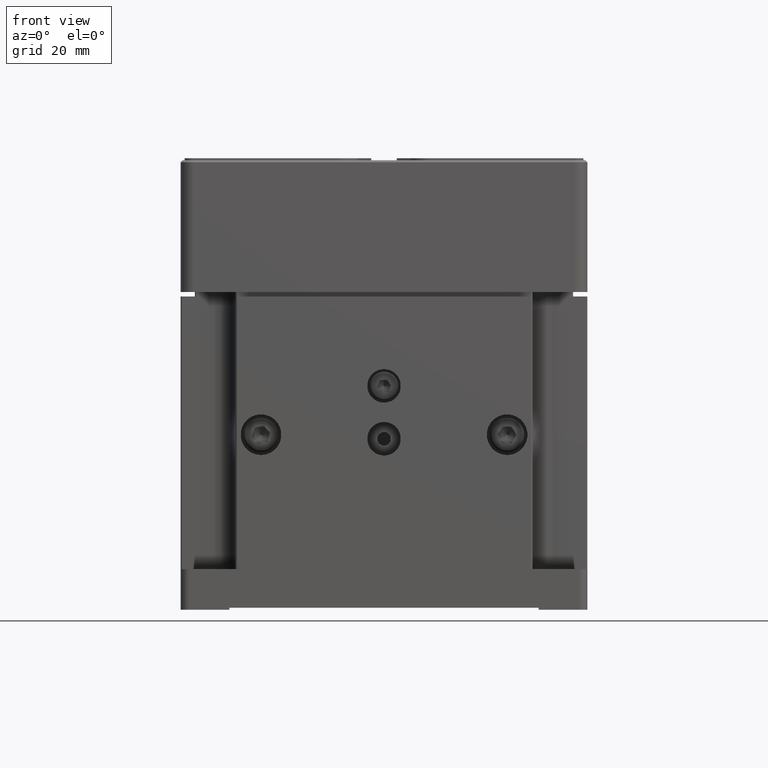
[diagram: clean part render]
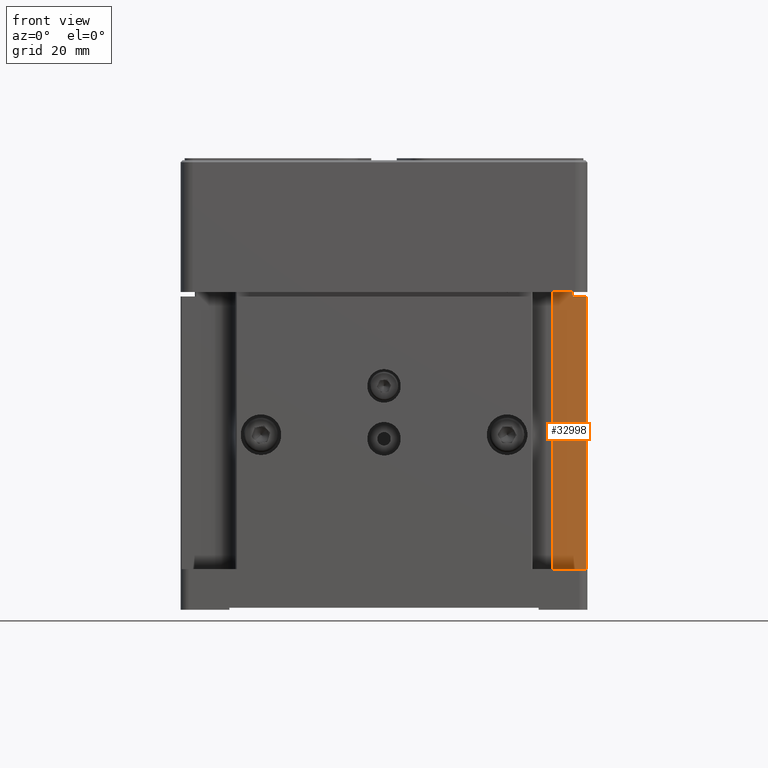
[diagram: same view with one face highlighted and labeled with its STEP entity id]
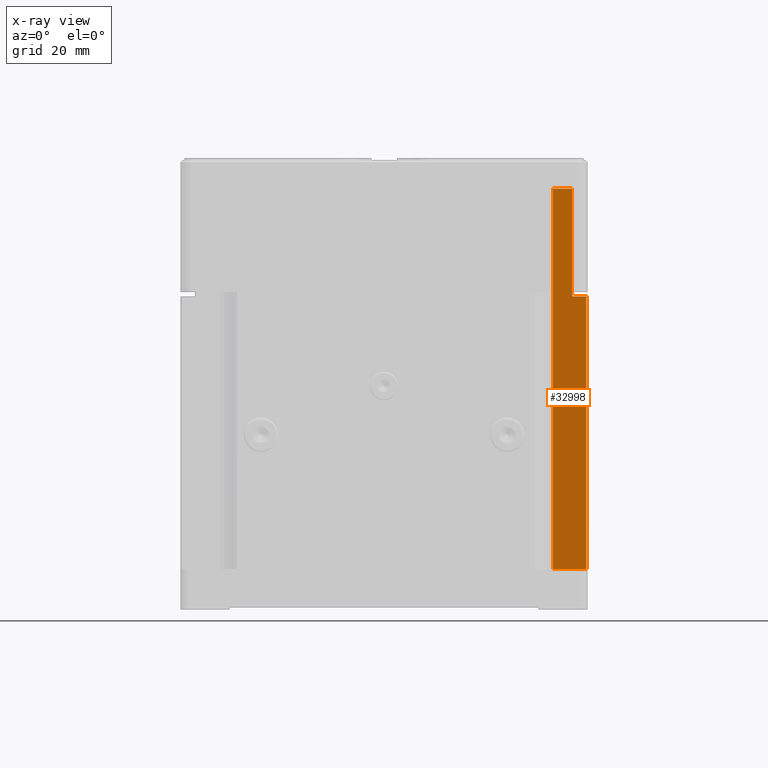
[diagram: x-ray of the same camera — body ghosted, the highlighted face saturated]
A machine part, front view. The second image highlights one B-rep face of the part: STEP entity #32998.
The next image is the same camera in x-ray: the body ghosted, the highlighted face saturated — about 0% of this face is hidden behind the body in this view.
In plain terms, the highlighted planar face has unit normal (-0, 1, 0).
Its self-contained STEP definition (entity closure, byte-faithful):
#830 = LINE ( 'NONE', #25293, #24806 ) ;
#920 = EDGE_CURVE ( 'NONE', #27210, #4157, #5012, .T. ) ;
#2830 = LINE ( 'NONE', #10702, #35156 ) ;
#4157 = VERTEX_POINT ( 'NONE', #31233 ) ;
#4774 = EDGE_CURVE ( 'NONE', #4157, #38066, #17916, .T. ) ;
#4836 = CARTESIAN_POINT ( 'NONE',  ( 46.19999999999996021, -36.50000000000000711, 93.49999999999998579 ) ) ;
#5012 = LINE ( 'NONE', #34191, #43991 ) ;
#5771 = EDGE_LOOP ( 'NONE', ( #36429, #22071, #18896, #30499, #26688, #36307 ) ) ;
#8370 = CARTESIAN_POINT ( 'NONE',  ( 41.49999999999999289, -36.50000000000000711, 0.000000000000000000 ) ) ;
#9741 = DIRECTION ( 'NONE',  ( -1.000000000000000000, -5.139921410301651782E-16, 0.000000000000000000 ) ) ;
#10702 = CARTESIAN_POINT ( 'NONE',  ( 46.19999999999996021, -36.50000000000000000, 93.50000000000000000 ) ) ;
#14398 = CARTESIAN_POINT ( 'NONE',  ( 0.000000000000000000, -36.50000000000000000, 0.000000000000000000 ) ) ;
#15780 = VECTOR ( 'NONE', #25695, 1000.000000000000000 ) ;
#16345 = DIRECTION ( 'NONE',  ( 0.000000000000000000, 0.000000000000000000, 1.000000000000000000 ) ) ;
#17526 = VERTEX_POINT ( 'NONE', #21775 ) ;
#17916 = LINE ( 'NONE', #14398, #15780 ) ;
#18896 = ORIENTED_EDGE ( 'NONE', *, *, #32737, .F. ) ;
#21775 = CARTESIAN_POINT ( 'NONE',  ( 41.49999999999999289, -36.50000000000000711, 93.50000000000000000 ) ) ;
#22071 = ORIENTED_EDGE ( 'NONE', *, *, #35726, .F. ) ;
#22240 = VERTEX_POINT ( 'NONE', #32947 ) ;
#22645 = CARTESIAN_POINT ( 'NONE',  ( 0.000000000000000000, -36.49999999999998579, 67.00000000000000000 ) ) ;
#24108 = LINE ( 'NONE', #34923, #35395 ) ;
#24739 = AXIS2_PLACEMENT_3D ( 'NONE', #29756, #44150, #9741 ) ;
#24806 = VECTOR ( 'NONE', #39669, 1000.000000000000000 ) ;
#25293 = CARTESIAN_POINT ( 'NONE',  ( 0.000000000000000000, -36.50000000000000711, 93.50000000000000000 ) ) ;
#25695 = DIRECTION ( 'NONE',  ( -1.000000000000000000, 0.000000000000000000, -0.000000000000000000 ) ) ;
#26154 = LINE ( 'NONE', #22645, #44198 ) ;
#26688 = ORIENTED_EDGE ( 'NONE', *, *, #4774, .F. ) ;
#27210 = VERTEX_POINT ( 'NONE', #29252 ) ;
#29252 = CARTESIAN_POINT ( 'NONE',  ( 49.69999999999998863, -36.49999999999998579, 67.00000000000000000 ) ) ;
#29756 = CARTESIAN_POINT ( 'NONE',  ( 36.50000000000000000, -36.50000000000000711, 93.50000000000000000 ) ) ;
#30499 = ORIENTED_EDGE ( 'NONE', *, *, #41648, .F. ) ;
#30682 = FACE_OUTER_BOUND ( 'NONE', #5771, .T. ) ;
#31233 = CARTESIAN_POINT ( 'NONE',  ( 49.69999999999998863, -36.50000000000000711, 0.000000000000000000 ) ) ;
#32737 = EDGE_CURVE ( 'NONE', #17526, #41547, #830, .T. ) ;
#32947 = CARTESIAN_POINT ( 'NONE',  ( 46.19999999999996021, -36.49999999999999289, 67.00000000000000000 ) ) ;
#32998 = ADVANCED_FACE ( 'NONE', ( #30682 ), #45091, .F. ) ;
#33968 = DIRECTION ( 'NONE',  ( -0.000000000000000000, -0.000000000000000000, -1.000000000000000000 ) ) ;
#34191 = CARTESIAN_POINT ( 'NONE',  ( 49.69999999999998863, -36.50000000000000000, 93.50000000000000000 ) ) ;
#34923 = CARTESIAN_POINT ( 'NONE',  ( 41.49999999999999289, -36.50000000000000711, 93.50000000000000000 ) ) ;
#35156 = VECTOR ( 'NONE', #43090, 1000.000000000000000 ) ;
#35371 = EDGE_CURVE ( 'NONE', #27210, #22240, #26154, .T. ) ;
#35395 = VECTOR ( 'NONE', #16345, 1000.000000000000000 ) ;
#35726 = EDGE_CURVE ( 'NONE', #41547, #22240, #2830, .T. ) ;
#36307 = ORIENTED_EDGE ( 'NONE', *, *, #920, .F. ) ;
#36429 = ORIENTED_EDGE ( 'NONE', *, *, #35371, .T. ) ;
#38066 = VERTEX_POINT ( 'NONE', #8370 ) ;
#39669 = DIRECTION ( 'NONE',  ( 1.000000000000000000, 0.000000000000000000, -0.000000000000000000 ) ) ;
#41547 = VERTEX_POINT ( 'NONE', #4836 ) ;
#41648 = EDGE_CURVE ( 'NONE', #38066, #17526, #24108, .T. ) ;
#43090 = DIRECTION ( 'NONE',  ( -0.000000000000000000, -0.000000000000000000, -1.000000000000000000 ) ) ;
#43861 = DIRECTION ( 'NONE',  ( -1.000000000000000000, 0.000000000000000000, -0.000000000000000000 ) ) ;
#43991 = VECTOR ( 'NONE', #33968, 1000.000000000000000 ) ;
#44150 = DIRECTION ( 'NONE',  ( -5.139921410301651782E-16, 1.000000000000000000, 0.000000000000000000 ) ) ;
#44198 = VECTOR ( 'NONE', #43861, 1000.000000000000000 ) ;
#45091 = PLANE ( 'NONE',  #24739 ) ;